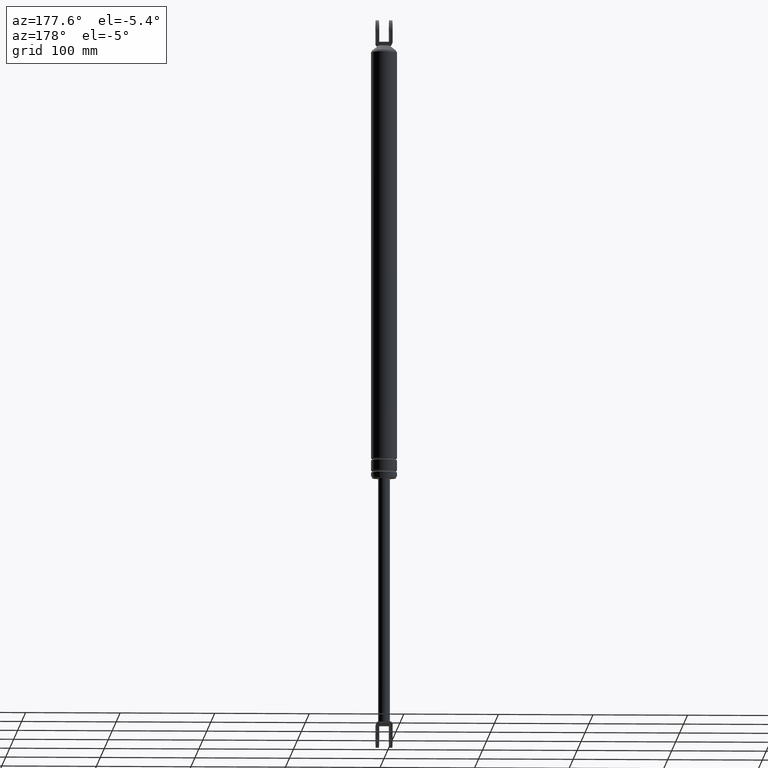
[diagram: clean part render]
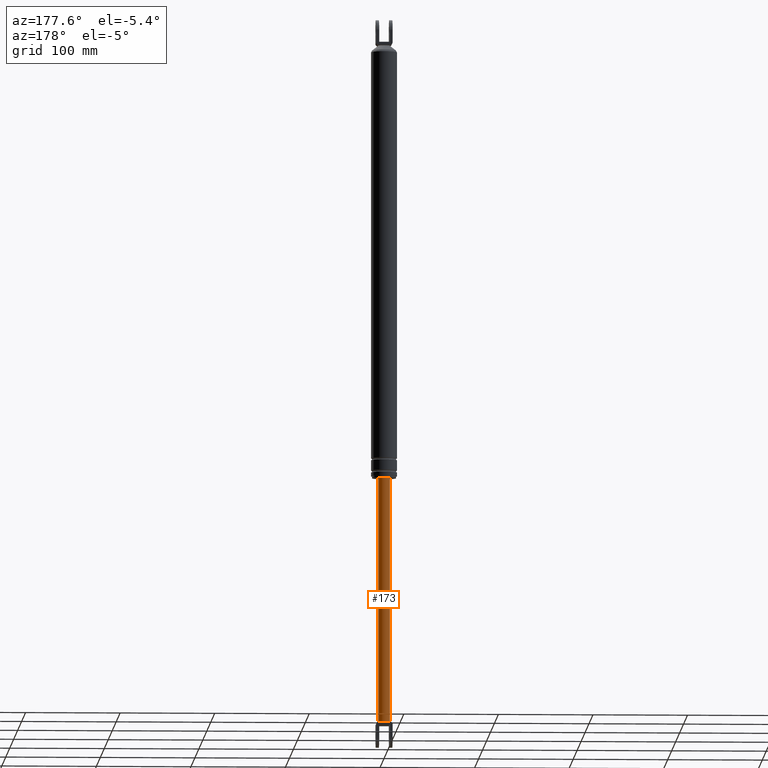
[diagram: same view with one face highlighted and labeled with its STEP entity id]
A machine part, auxiliary view. The second image highlights one B-rep face of the part: STEP entity #173.
In plain terms, the highlighted cylindrical surface (edge-blend (fillet) strip) has radius 6.25 mm, axis along (0, 0, 1).
Its self-contained STEP definition (entity closure, byte-faithful):
#173=ADVANCED_FACE('',(#795),#794,.T.);
#794=CYLINDRICAL_SURFACE('',#1383,6.25000000000E+000);
#795=FACE_OUTER_BOUND('',#1384,.T.);
#1380=CARTESIAN_POINT('',(0.00000000000E+000,0.00000000000E+000,7.87799987000E+002));
#1381=DIRECTION('',(-0.00000000000E+000,-0.00000000000E+000,1.00000000000E+000));
#1382=DIRECTION('',(1.00000000000E+000,-0.00000000000E+000,-0.00000000000E+000));
#1383=AXIS2_PLACEMENT_3D('',#1380,#1381,#1382);
#1384=EDGE_LOOP('',(#1686,#1687,#1688,#1689,#1690,#1691));
#1686=ORIENTED_EDGE('',*,*,#1834,.F.);
#1687=ORIENTED_EDGE('',*,*,#1850,.F.);
#1688=ORIENTED_EDGE('',*,*,#1840,.F.);
#1689=ORIENTED_EDGE('',*,*,#1836,.F.);
#1690=ORIENTED_EDGE('',*,*,#1792,.F.);
#1691=ORIENTED_EDGE('',*,*,#1851,.T.);
#1792=EDGE_CURVE('',#2468,#2475,#2476,.T.);
#1834=EDGE_CURVE('',#2753,#2752,#2760,.T.);
#1836=EDGE_CURVE('',#2475,#2772,#2773,.T.);
#1840=EDGE_CURVE('',#2772,#2797,#2798,.T.);
#1850=EDGE_CURVE('',#2797,#2753,#2860,.T.);
#1851=EDGE_CURVE('',#2468,#2752,#2866,.T.);
#2468=VERTEX_POINT('',#3256);
#2475=VERTEX_POINT('',#3261);
#2476=CIRCLE('',#3265,6.25000000000E+000);
#2752=VERTEX_POINT('',#3446);
#2753=VERTEX_POINT('',#3447);
#2760=CIRCLE('',#3455,6.25000000000E+000);
#2772=VERTEX_POINT('',#3459);
#2773=CIRCLE('',#3463,6.25000000000E+000);
#2797=VERTEX_POINT('',#3475);
#2798=CIRCLE('',#3479,6.25000000000E+000);
#2860=(BOUNDED_CURVE() B_SPLINE_CURVE(1,(#3508,#3509),.UNSPECIFIED.,.F.,.F.) B_SPLINE_CURVE_WITH_KNOTS((2,2),(3.58422919179E-002,9.64157708207E-001),.UNSPECIFIED.) CURVE() GEOMETRIC_REPRESENTATION_ITEM() RATIONAL_B_SPLINE_CURVE((1.00000000000E+000,1.00000000000E+000)) REPRESENTATION_ITEM('') );
#2866=(BOUNDED_CURVE() B_SPLINE_CURVE(1,(#3510,#3511),.UNSPECIFIED.,.F.,.F.) B_SPLINE_CURVE_WITH_KNOTS((2,2),(3.58422918513E-002,9.64157708149E-001),.UNSPECIFIED.) CURVE() GEOMETRIC_REPRESENTATION_ITEM() RATIONAL_B_SPLINE_CURVE((7.50000000000E-001,7.50000000000E-001)) REPRESENTATION_ITEM('') );
#3256=CARTESIAN_POINT('',(-6.25000000000E+000,-1.32865964537E-008,-2.09000016000E+002));
#3261=CARTESIAN_POINT('',(-5.69999700000E+000,2.56369541872E+000,-2.09000016000E+002));
#3262=CARTESIAN_POINT('',(0.00000000000E+000,0.00000000000E+000,-2.09000016000E+002));
#3263=DIRECTION('',(0.00000000000E+000,-0.00000000000E+000,-1.00000000000E+000));
#3264=DIRECTION('',(-9.11999520000E-001,4.10191266996E-001,-0.00000000000E+000));
#3265=AXIS2_PLACEMENT_3D('',#3262,#3263,#3264);
#3446=CARTESIAN_POINT('',(-6.25000000000E+000,0.00000000000E+000,5.00000000000E+001));
#3447=CARTESIAN_POINT('',(6.25000000000E+000,8.88178419700E-016,5.00000000000E+001));
#3452=CARTESIAN_POINT('',(0.00000000000E+000,0.00000000000E+000,5.00000000000E+001));
#3453=DIRECTION('',(0.00000000000E+000,0.00000000000E+000,1.00000000000E+000));
#3454=DIRECTION('',(-1.00000000000E+000,-1.22460635382E-016,0.00000000000E+000));
#3455=AXIS2_PLACEMENT_3D('',#3452,#3453,#3454);
#3459=CARTESIAN_POINT('',(5.69999700000E+000,2.56369541872E+000,-2.09000016000E+002));
#3460=CARTESIAN_POINT('',(0.00000000000E+000,0.00000000000E+000,-2.09000016000E+002));
#3461=DIRECTION('',(0.00000000000E+000,0.00000000000E+000,-1.00000000000E+000));
#3462=DIRECTION('',(-1.00000000000E+000,-0.00000000000E+000,-0.00000000000E+000));
#3463=AXIS2_PLACEMENT_3D('',#3460,#3461,#3462);
#3475=CARTESIAN_POINT('',(6.25000000000E+000,8.12925012908E-016,-2.09000016000E+002));
#3476=CARTESIAN_POINT('',(0.00000000000E+000,0.00000000000E+000,-2.09000016000E+002));
#3477=DIRECTION('',(0.00000000000E+000,0.00000000000E+000,-1.00000000000E+000));
#3478=DIRECTION('',(-1.00000000000E+000,-0.00000000000E+000,-0.00000000000E+000));
#3479=AXIS2_PLACEMENT_3D('',#3476,#3477,#3478);
#3508=CARTESIAN_POINT('',(6.25000000000E+000,0.00000000000E+000,-2.09000015981E+002));
#3509=CARTESIAN_POINT('',(6.25000000000E+000,0.00000000000E+000,5.00000000163E+001));
#3510=CARTESIAN_POINT('',(-6.25000000000E+000,0.00000000000E+000,-2.09000016000E+002));
#3511=CARTESIAN_POINT('',(-6.25000000000E+000,0.00000000000E+000,5.00000000000E+001));